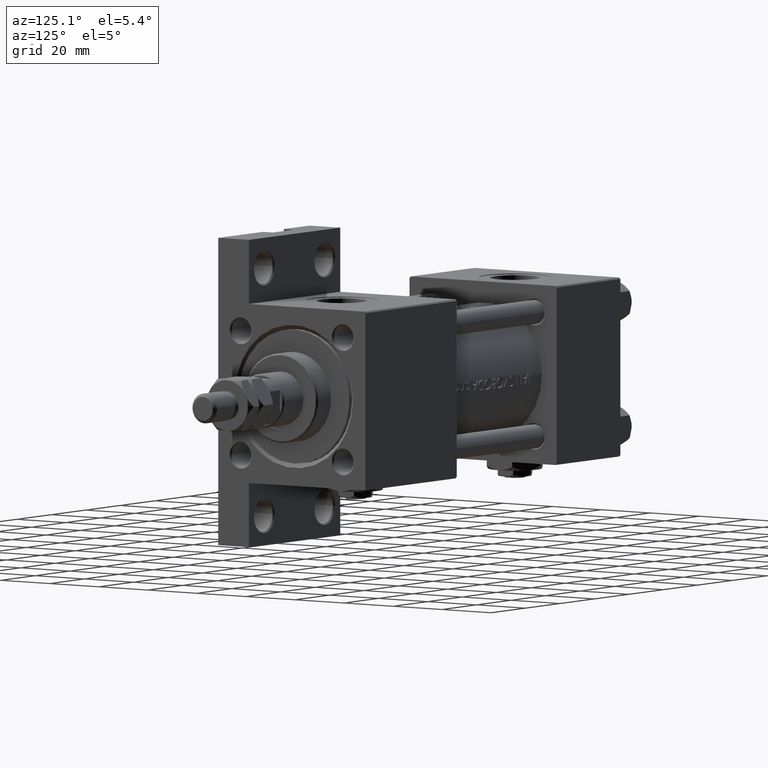
[diagram: clean part render]
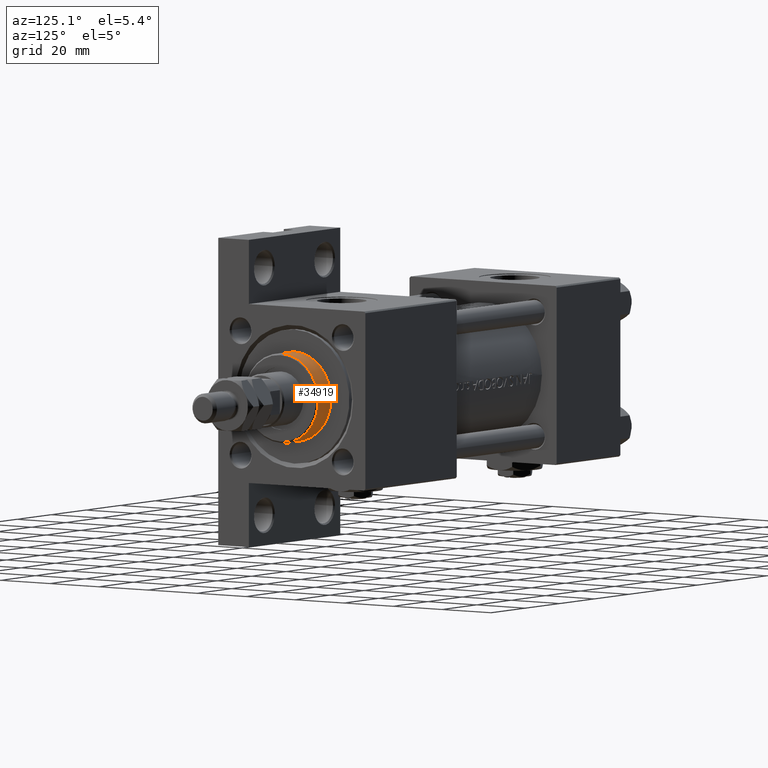
[diagram: same view with one face highlighted and labeled with its STEP entity id]
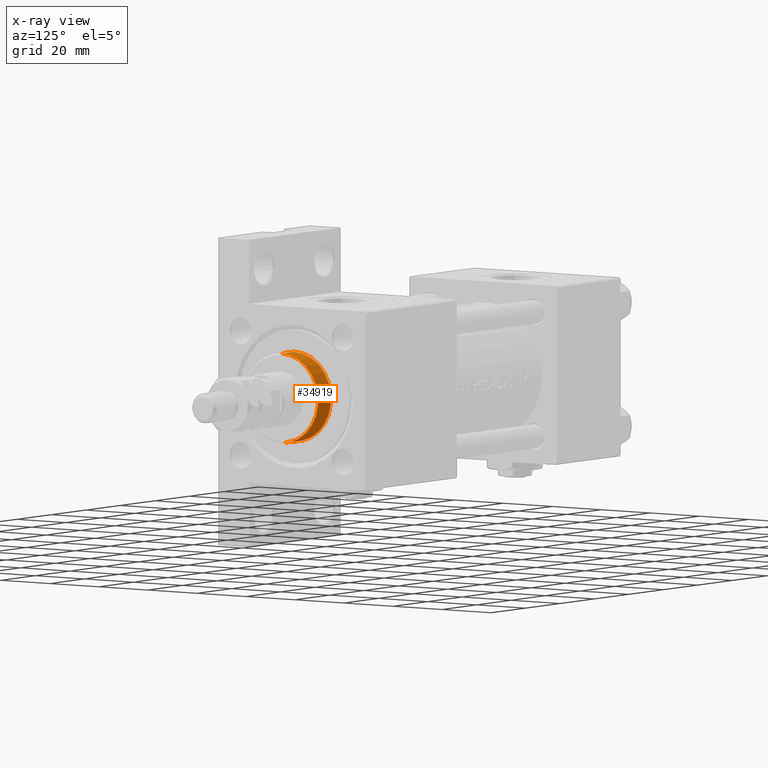
[diagram: x-ray of the same camera — body ghosted, the highlighted face saturated]
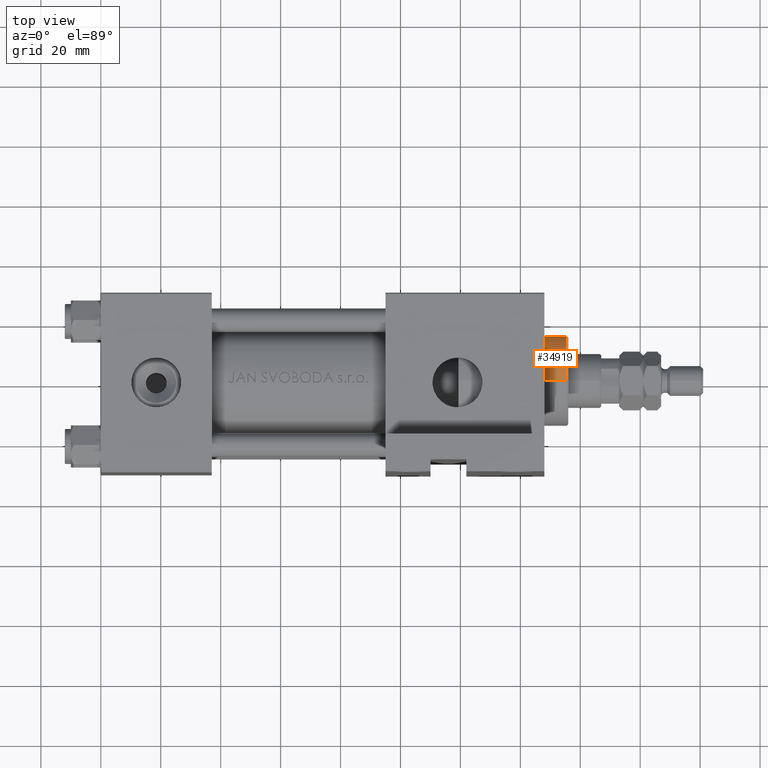
[diagram: same view with one face highlighted and labeled with its STEP entity id]
A machine part, auxiliary view. The second image highlights one B-rep face of the part: STEP entity #34919.
The next image is the same camera in x-ray: the body ghosted, the highlighted face saturated — about 0% of this face is hidden behind the body in this view.
A second angle (top view) of the same face is appended — the face is thin or edge-on in the first view.
In plain terms, the highlighted cylindrical surface (partial cylindrical patch) has radius 15 mm, axis along (-1, 0, 0).
Its self-contained STEP definition (entity closure, byte-faithful):
#2089 = ORIENTED_EDGE ( 'NONE', *, *, #33695, .T. ) ;
#2111 = LINE ( 'NONE', #39185, #23716 ) ;
#3566 = EDGE_CURVE ( 'NONE', #27128, #6418, #2111, .T. ) ;
#6247 = DIRECTION ( 'NONE',  ( 0.000000000000000000, 0.000000000000000000, 1.000000000000000000 ) ) ;
#6418 = VERTEX_POINT ( 'NONE', #45857 ) ;
#7464 = EDGE_LOOP ( 'NONE', ( #23413, #2089, #40725, #9354 ) ) ;
#9354 = ORIENTED_EDGE ( 'NONE', *, *, #16131, .T. ) ;
#9674 = VECTOR ( 'NONE', #45474, 1000.000000000000000 ) ;
#9964 = DIRECTION ( 'NONE',  ( -0.000000000000000000, -0.000000000000000000, -1.000000000000000000 ) ) ;
#11722 = AXIS2_PLACEMENT_3D ( 'NONE', #13912, #6247, #34020 ) ;
#12170 = CARTESIAN_POINT ( 'NONE',  ( 0.000000000000000000, 0.000000000000000000, 36.20000000000000284 ) ) ;
#13912 = CARTESIAN_POINT ( 'NONE',  ( 0.000000000000000000, 0.000000000000000000, 28.69999999999999929 ) ) ;
#16131 = EDGE_CURVE ( 'NONE', #19149, #6418, #27753, .T. ) ;
#19149 = VERTEX_POINT ( 'NONE', #39922 ) ;
#23277 = DIRECTION ( 'NONE',  ( -0.000000000000000000, -0.000000000000000000, -1.000000000000000000 ) ) ;
#23413 = ORIENTED_EDGE ( 'NONE', *, *, #3566, .F. ) ;
#23716 = VECTOR ( 'NONE', #23277, 1000.000000000000000 ) ;
#26620 = CYLINDRICAL_SURFACE ( 'NONE', #40816, 15.00000000000000000 ) ;
#27128 = VERTEX_POINT ( 'NONE', #47738 ) ;
#27753 = CIRCLE ( 'NONE', #11722, 15.00000000000000000 ) ;
#29054 = LINE ( 'NONE', #36513, #9674 ) ;
#33695 = EDGE_CURVE ( 'NONE', #27128, #38402, #39060, .T. ) ;
#34020 = DIRECTION ( 'NONE',  ( 1.000000000000000000, 0.000000000000000000, 0.000000000000000000 ) ) ;
#34307 = FACE_OUTER_BOUND ( 'NONE', #7464, .T. ) ;
#34919 = ADVANCED_FACE ( 'NONE', ( #34307 ), #26620, .T. ) ;
#36513 = CARTESIAN_POINT ( 'NONE',  ( -15.00000000000000000, 0.000000000000000000, 36.69999999999999574 ) ) ;
#36782 = DIRECTION ( 'NONE',  ( 0.000000000000000000, 0.000000000000000000, -1.000000000000000000 ) ) ;
#38402 = VERTEX_POINT ( 'NONE', #50187 ) ;
#38848 = EDGE_CURVE ( 'NONE', #38402, #19149, #29054, .T. ) ;
#39060 = CIRCLE ( 'NONE', #49151, 15.00000000000000000 ) ;
#39185 = CARTESIAN_POINT ( 'NONE',  ( 15.00000000000000000, 1.836970198721029589E-15, 36.69999999999999574 ) ) ;
#39922 = CARTESIAN_POINT ( 'NONE',  ( -15.00000000000000000, 0.000000000000000000, 28.69999999999999929 ) ) ;
#40725 = ORIENTED_EDGE ( 'NONE', *, *, #38848, .T. ) ;
#40816 = AXIS2_PLACEMENT_3D ( 'NONE', #46754, #9964, #50459 ) ;
#45474 = DIRECTION ( 'NONE',  ( -0.000000000000000000, -0.000000000000000000, -1.000000000000000000 ) ) ;
#45491 = DIRECTION ( 'NONE',  ( 1.000000000000000000, 0.000000000000000000, 0.000000000000000000 ) ) ;
#45857 = CARTESIAN_POINT ( 'NONE',  ( 15.00000000000000000, 1.836970198721029589E-15, 28.69999999999999929 ) ) ;
#46754 = CARTESIAN_POINT ( 'NONE',  ( 0.000000000000000000, 0.000000000000000000, 36.69999999999999574 ) ) ;
#47738 = CARTESIAN_POINT ( 'NONE',  ( 15.00000000000000000, 1.836970198721029589E-15, 36.20000000000000284 ) ) ;
#49151 = AXIS2_PLACEMENT_3D ( 'NONE', #12170, #36782, #45491 ) ;
#50187 = CARTESIAN_POINT ( 'NONE',  ( -15.00000000000000000, 0.000000000000000000, 36.20000000000000284 ) ) ;
#50459 = DIRECTION ( 'NONE',  ( -1.000000000000000000, 0.000000000000000000, 0.000000000000000000 ) ) ;